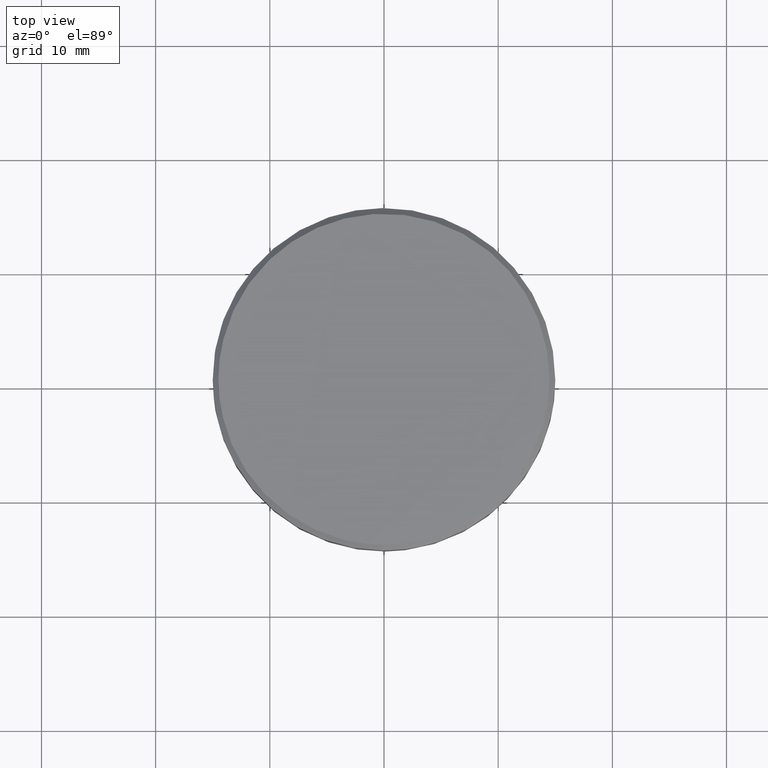
[diagram: clean part render]
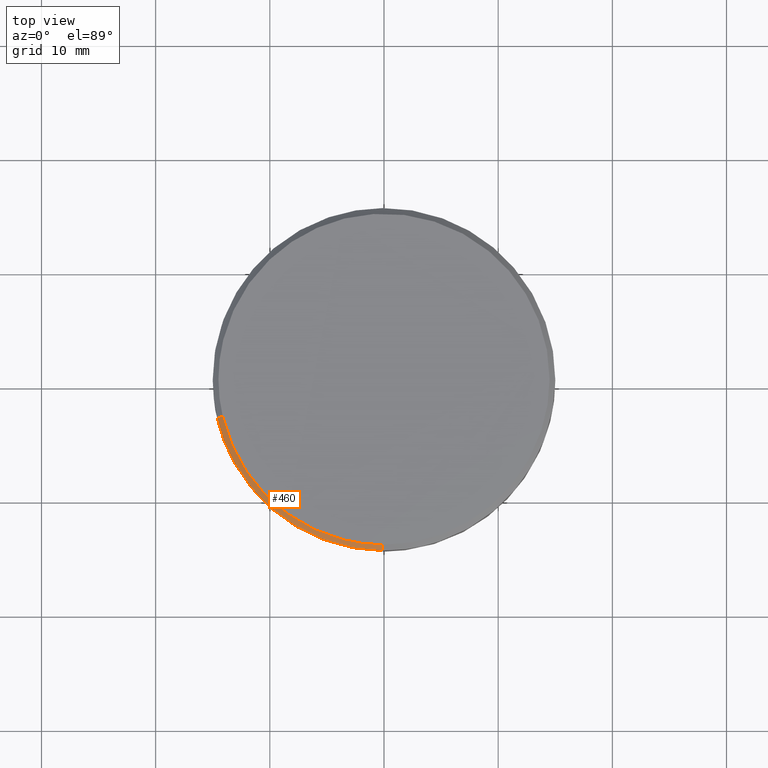
[diagram: same view with one face highlighted and labeled with its STEP entity id]
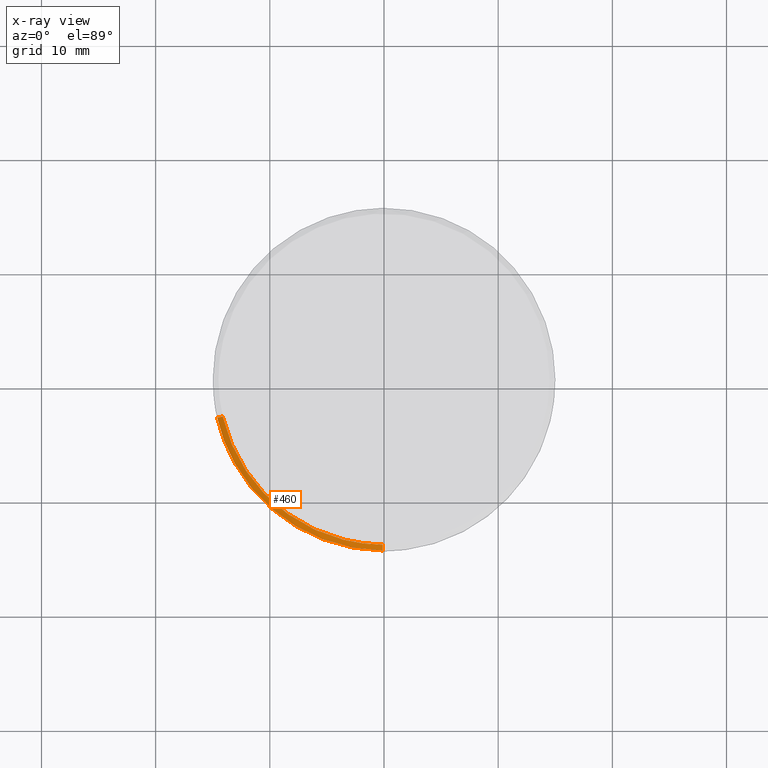
[diagram: x-ray of the same camera — body ghosted, the highlighted face saturated]
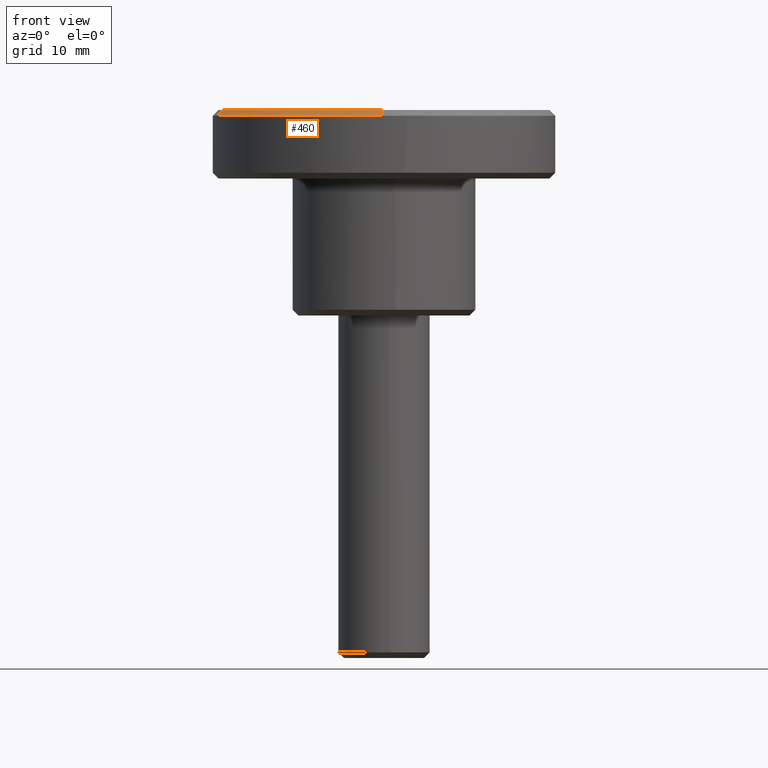
[diagram: same view with one face highlighted and labeled with its STEP entity id]
A machine part, top view. The second image highlights one B-rep face of the part: STEP entity #460.
The next image is the same camera in x-ray: the body ghosted, the highlighted face saturated — about 0% of this face is hidden behind the body in this view.
A second angle (front view) of the same face is appended — the face is thin or edge-on in the first view.
In plain terms, the highlighted face is a freeform B-spline surface patch.
Its self-contained STEP definition (entity closure, byte-faithful):
#271=CARTESIAN_POINT('',(-14.613272297677160,-3.384120676629826,17.499999999998249));
#272=VERTEX_POINT('',#271);
#288=CARTESIAN_POINT('',(-14.126163221084020,-3.271316654109802,17.999999999994401));
#289=VERTEX_POINT('',#288);
#290=CARTESIAN_POINT('',(-14.126163221084020,-3.271316654109802,17.999999999994401));
#291=CARTESIAN_POINT('',(-14.613272297677160,-3.384120676629826,17.499999999998249));
#292=QUASI_UNIFORM_CURVE('',1,(#290,#291),.UNSPECIFIED.,.F.,.U.);
#293=EDGE_CURVE('',#289,#272,#292,.T.);
#327=CARTESIAN_POINT('',(-0.126534764776505,-14.499447884436870,17.999999999993211));
#328=VERTEX_POINT('',#327);
#344=CARTESIAN_POINT('',(-0.130898032521303,-14.999428845968369,17.499999999993801));
#345=VERTEX_POINT('',#344);
#346=CARTESIAN_POINT('',(-0.126534764776505,-14.499447884436870,17.999999999993211));
#347=CARTESIAN_POINT('',(-0.130898032521303,-14.999428845968369,17.499999999993801));
#348=QUASI_UNIFORM_CURVE('',1,(#346,#347),.UNSPECIFIED.,.F.,.U.);
#349=EDGE_CURVE('',#328,#345,#348,.T.);
#416=CARTESIAN_POINT('',(-0.126425683032692,-14.486948360392230,18.012499999999999));
#417=CARTESIAN_POINT('',(-11.539096987788398,-14.387351486776240,18.012500000000003));
#418=CARTESIAN_POINT('',(-14.113985494174887,-3.268496553497049,18.012499999999999));
#419=CARTESIAN_POINT('',(-0.131009841211681,-15.012240858101830,17.487187500000001));
#420=CARTESIAN_POINT('',(-11.957501259498279,-14.909032631065896,17.487187500000001));
#421=CARTESIAN_POINT('',(-14.625754467766466,-3.387011279692647,17.487187499999997));
#429=(BOUNDED_SURFACE()B_SPLINE_SURFACE(2,1,((#416,#419),(#417,#420),(#418,#421)),.UNSPECIFIED.,.F.,.F.,.U.)B_SPLINE_SURFACE_WITH_KNOTS((3,3),(2,2),(0.0,20.802823909488470),(0.0,1.0),.UNSPECIFIED.)GEOMETRIC_REPRESENTATION_ITEM()RATIONAL_B_SPLINE_SURFACE(((1.0,1.0),(0.753969696196700,0.753969696196700),(0.921270302782944,0.921270302782944)))REPRESENTATION_ITEM('')SURFACE());
#430=CARTESIAN_POINT('',(-0.130898032521303,-14.999428845968374,17.499999999993801));
#431=CARTESIAN_POINT('',(-11.947296277253635,-14.896308700645521,17.500000000000000));
#432=CARTESIAN_POINT('',(-14.613272297677165,-3.384120676629826,17.499999999998259));
#440=(BOUNDED_CURVE()B_SPLINE_CURVE(2,(#430,#431,#432),.UNSPECIFIED.,.F.,.U.)B_SPLINE_CURVE_WITH_KNOTS((3,3),(0.751539894336059,0.961422971784280),.UNSPECIFIED.)CURVE()GEOMETRIC_REPRESENTATION_ITEM()RATIONAL_B_SPLINE_CURVE((0.996414028097925,0.753549905437058,0.923556557442251))REPRESENTATION_ITEM(''));
#441=EDGE_CURVE('',#345,#272,#440,.T.);
#442=ORIENTED_EDGE('',*,*,#441,.F.);
#443=ORIENTED_EDGE('',*,*,#349,.F.);
#444=CARTESIAN_POINT('',(-14.126163221084019,-3.271316654109802,17.999999999994404));
#445=CARTESIAN_POINT('',(-11.549053067958425,-14.399765077281884,17.999999999999996));
#446=CARTESIAN_POINT('',(-0.126534764776505,-14.499447884436869,17.999999999993207));
#454=(BOUNDED_CURVE()B_SPLINE_CURVE(2,(#444,#445,#446),.UNSPECIFIED.,.F.,.U.)B_SPLINE_CURVE_WITH_KNOTS((3,3),(0.538577028216492,0.748460105663798),.UNSPECIFIED.)CURVE()GEOMETRIC_REPRESENTATION_ITEM()RATIONAL_B_SPLINE_CURVE((0.923556557441000,0.753549905438067,0.996414028097595))REPRESENTATION_ITEM(''));
#455=EDGE_CURVE('',#289,#328,#454,.T.);
#456=ORIENTED_EDGE('',*,*,#455,.F.);
#457=ORIENTED_EDGE('',*,*,#293,.T.);
#458=EDGE_LOOP('',(#442,#443,#456,#457));
#459=FACE_OUTER_BOUND('',#458,.T.);
#460=ADVANCED_FACE('',(#459),#429,.T.);